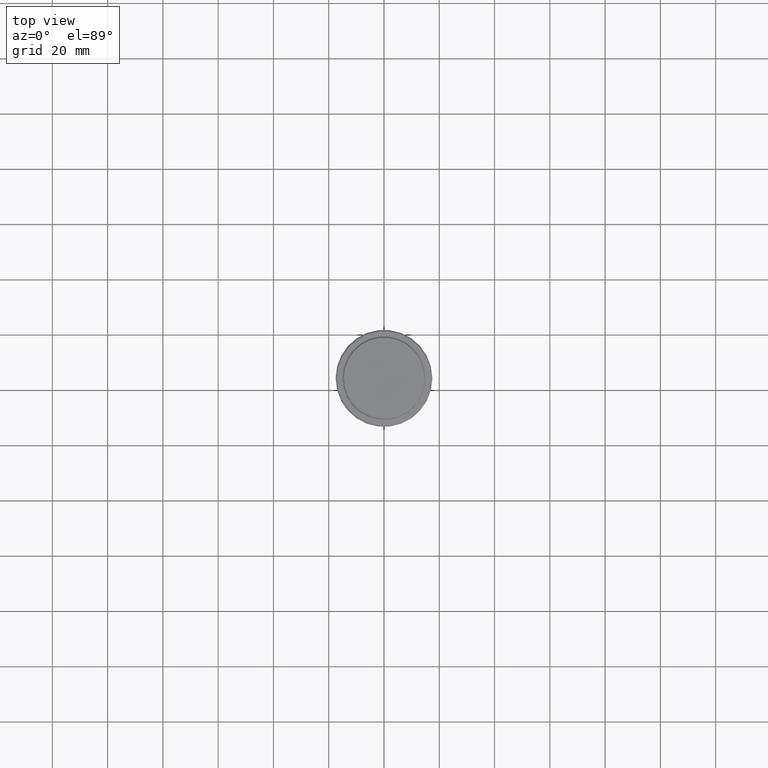
[diagram: clean part render]
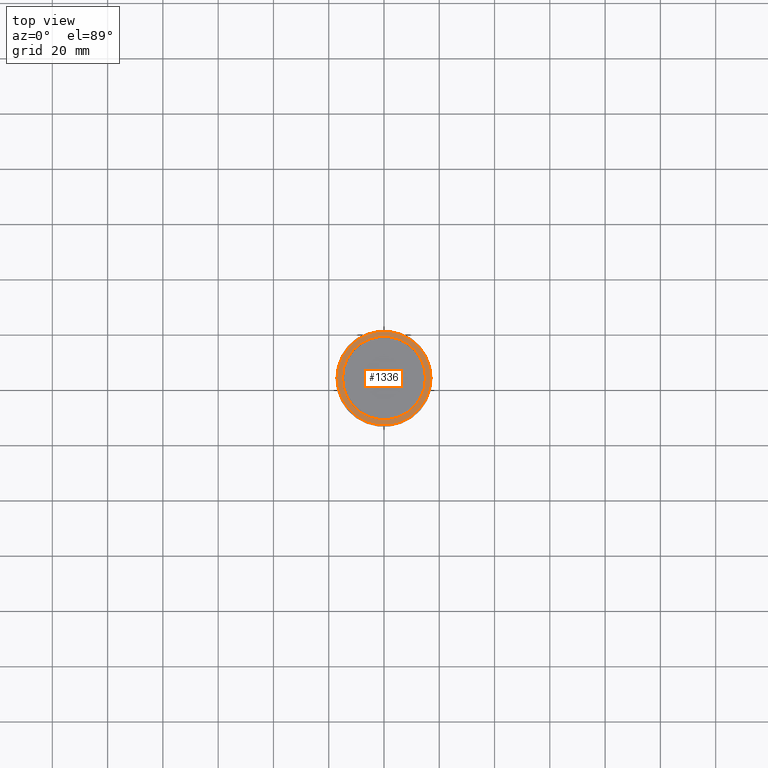
[diagram: same view with one face highlighted and labeled with its STEP entity id]
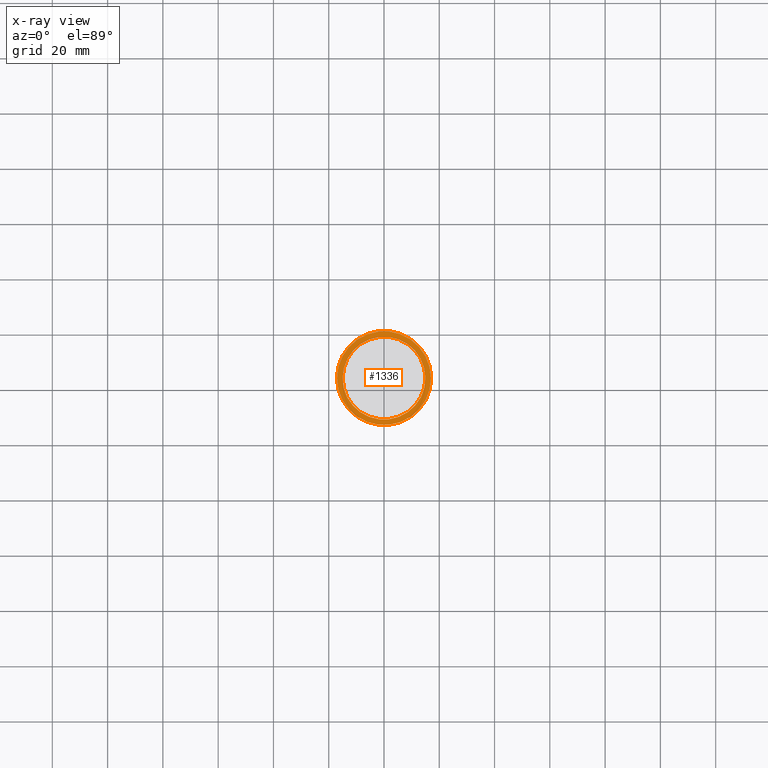
[diagram: x-ray of the same camera — body ghosted, the highlighted face saturated]
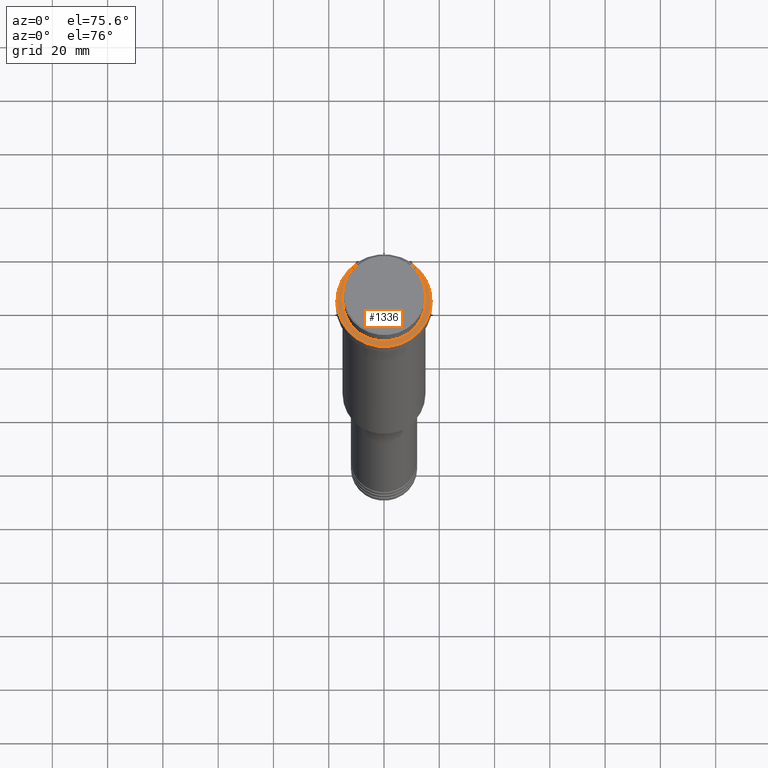
[diagram: same view with one face highlighted and labeled with its STEP entity id]
A machine part, top view. The second image highlights one B-rep face of the part: STEP entity #1336.
The next image is the same camera in x-ray: the body ghosted, the highlighted face saturated — about 0% of this face is hidden behind the body in this view.
A second angle (auxiliary view) of the same face is appended — the face is thin or edge-on in the first view.
In plain terms, the highlighted planar face has unit normal (0, -0, 1).
Its self-contained STEP definition (entity closure, byte-faithful):
#20 = CIRCLE ( 'NONE', #777, 14.99999999999999467 ) ;
#35 = DIRECTION ( 'NONE',  ( 1.000000000000000000, 0.000000000000000000, 0.000000000000000000 ) ) ;
#108 = AXIS2_PLACEMENT_3D ( 'NONE', #356, #1018, #35 ) ;
#186 = CARTESIAN_POINT ( 'NONE',  ( 14.99999999999999467, 0.000000000000000000, -9.000000000000001776 ) ) ;
#187 = FACE_OUTER_BOUND ( 'NONE', #1170, .T. ) ;
#206 = CARTESIAN_POINT ( 'NONE',  ( 0.000000000000000000, 0.000000000000000000, -9.000000000000001776 ) ) ;
#286 = DIRECTION ( 'NONE',  ( 1.000000000000000000, 0.000000000000000000, 0.000000000000000000 ) ) ;
#297 = DIRECTION ( 'NONE',  ( 1.000000000000000000, 0.000000000000000000, 0.000000000000000000 ) ) ;
#310 = PLANE ( 'NONE',  #741 ) ;
#329 = ORIENTED_EDGE ( 'NONE', *, *, #1176, .T. ) ;
#341 = CARTESIAN_POINT ( 'NONE',  ( -17.00000000000001421, 0.000000000000000000, -9.000000000000001776 ) ) ;
#345 = DIRECTION ( 'NONE',  ( 0.000000000000000000, 0.000000000000000000, -1.000000000000000000 ) ) ;
#356 = CARTESIAN_POINT ( 'NONE',  ( 0.000000000000000000, 0.000000000000000000, -9.000000000000001776 ) ) ;
#366 = AXIS2_PLACEMENT_3D ( 'NONE', #935, #829, #1257 ) ;
#368 = VERTEX_POINT ( 'NONE', #1081 ) ;
#467 = CARTESIAN_POINT ( 'NONE',  ( -14.99999999999999467, 1.836970198721029194E-15, -9.000000000000001776 ) ) ;
#471 = VERTEX_POINT ( 'NONE', #467 ) ;
#521 = CARTESIAN_POINT ( 'NONE',  ( 0.000000000000000000, 14.49999999999999467, -9.000000000000001776 ) ) ;
#637 = EDGE_CURVE ( 'NONE', #1041, #368, #1230, .T. ) ;
#673 = CIRCLE ( 'NONE', #366, 17.00000000000001421 ) ;
#679 = ORIENTED_EDGE ( 'NONE', *, *, #688, .T. ) ;
#688 = EDGE_CURVE ( 'NONE', #768, #471, #20, .T. ) ;
#741 = AXIS2_PLACEMENT_3D ( 'NONE', #521, #966, #297 ) ;
#768 = VERTEX_POINT ( 'NONE', #186 ) ;
#777 = AXIS2_PLACEMENT_3D ( 'NONE', #206, #345, #1074 ) ;
#778 = FACE_BOUND ( 'NONE', #812, .T. ) ;
#812 = EDGE_LOOP ( 'NONE', ( #679, #329 ) ) ;
#829 = DIRECTION ( 'NONE',  ( -0.000000000000000000, -0.000000000000000000, 1.000000000000000000 ) ) ;
#935 = CARTESIAN_POINT ( 'NONE',  ( 0.000000000000000000, 0.000000000000000000, -9.000000000000001776 ) ) ;
#959 = ORIENTED_EDGE ( 'NONE', *, *, #637, .T. ) ;
#966 = DIRECTION ( 'NONE',  ( 0.000000000000000000, -0.000000000000000000, 1.000000000000000000 ) ) ;
#1018 = DIRECTION ( 'NONE',  ( -0.000000000000000000, -0.000000000000000000, 1.000000000000000000 ) ) ;
#1041 = VERTEX_POINT ( 'NONE', #341 ) ;
#1074 = DIRECTION ( 'NONE',  ( 1.000000000000000000, 0.000000000000000000, 0.000000000000000000 ) ) ;
#1081 = CARTESIAN_POINT ( 'NONE',  ( 17.00000000000001421, 2.112515728529185250E-15, -9.000000000000001776 ) ) ;
#1150 = ORIENTED_EDGE ( 'NONE', *, *, #1302, .T. ) ;
#1170 = EDGE_LOOP ( 'NONE', ( #959, #1150 ) ) ;
#1176 = EDGE_CURVE ( 'NONE', #471, #768, #1256, .T. ) ;
#1230 = CIRCLE ( 'NONE', #108, 17.00000000000001421 ) ;
#1233 = AXIS2_PLACEMENT_3D ( 'NONE', #1356, #1241, #286 ) ;
#1241 = DIRECTION ( 'NONE',  ( 0.000000000000000000, 0.000000000000000000, -1.000000000000000000 ) ) ;
#1256 = CIRCLE ( 'NONE', #1233, 14.99999999999999467 ) ;
#1257 = DIRECTION ( 'NONE',  ( 1.000000000000000000, 0.000000000000000000, 0.000000000000000000 ) ) ;
#1302 = EDGE_CURVE ( 'NONE', #368, #1041, #673, .T. ) ;
#1336 = ADVANCED_FACE ( 'NONE', ( #187, #778 ), #310, .T. ) ;
#1356 = CARTESIAN_POINT ( 'NONE',  ( 0.000000000000000000, 0.000000000000000000, -9.000000000000001776 ) ) ;